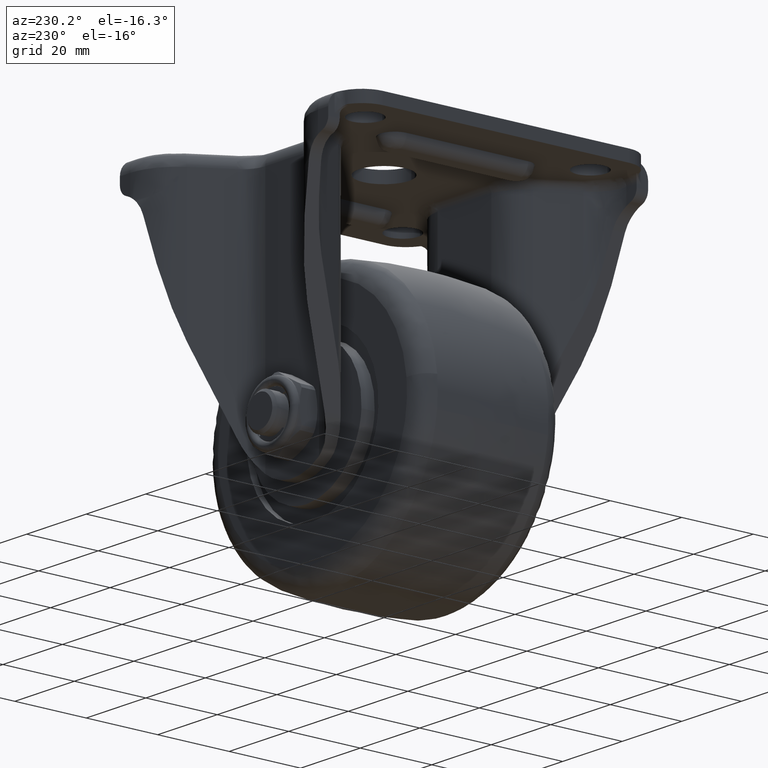
[diagram: clean part render]
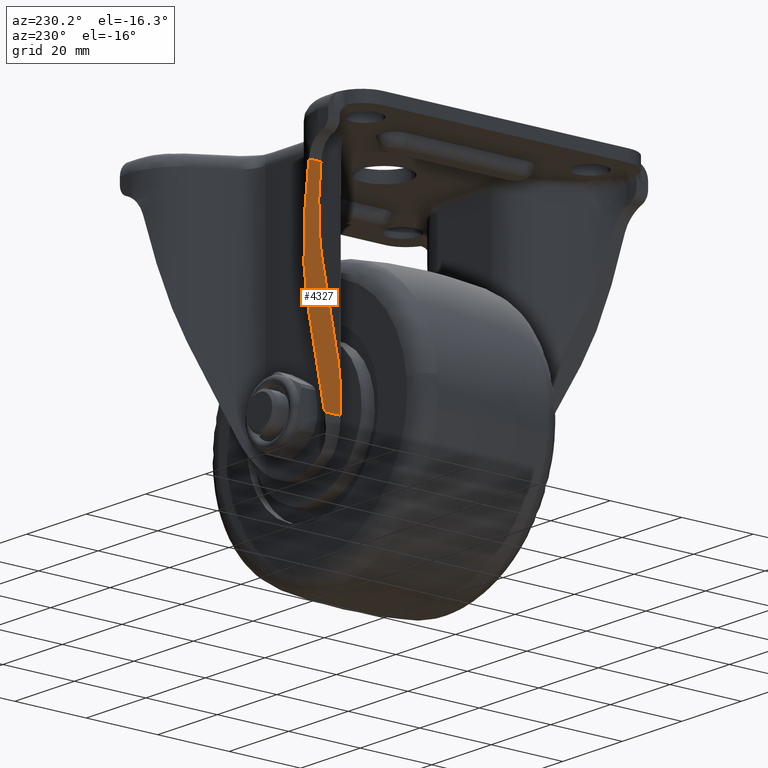
[diagram: same view with one face highlighted and labeled with its STEP entity id]
A machine part, auxiliary view. The second image highlights one B-rep face of the part: STEP entity #4327.
In plain terms, the highlighted face is a freeform B-spline surface patch.
Its self-contained STEP definition (entity closure, byte-faithful):
#3979=CARTESIAN_POINT('',(-27.843482274095500,44.224849989670602,-14.117380676074980));
#3980=VERTEX_POINT('',#3979);
#4006=CARTESIAN_POINT('',(-27.843482274095500,40.845788872264087,-14.117380676074980));
#4007=VERTEX_POINT('',#4006);
#4008=CARTESIAN_POINT('',(-27.843482274095500,44.224849989670602,-14.117380676074980));
#4009=CARTESIAN_POINT('',(-27.843482274095500,40.845788872264087,-14.117380676074980));
#4010=QUASI_UNIFORM_CURVE('',1,(#4008,#4009),.UNSPECIFIED.,.F.,.U.);
#4011=EDGE_CURVE('',#3980,#4007,#4010,.T.);
#4089=CARTESIAN_POINT('',(-14.506444900000080,28.746157723421149,-64.816132000000096));
#4090=VERTEX_POINT('',#4089);
#4211=CARTESIAN_POINT('',(-14.506444900000080,24.214443508646749,-64.816132000000096));
#4212=VERTEX_POINT('',#4211);
#4240=CARTESIAN_POINT('',(-14.506444900000080,28.746157723421149,-64.816132000000096));
#4241=CARTESIAN_POINT('',(-14.506444900000080,24.214443508646749,-64.816132000000096));
#4242=QUASI_UNIFORM_CURVE('',1,(#4240,#4241),.UNSPECIFIED.,.F.,.U.);
#4243=EDGE_CURVE('',#4090,#4212,#4242,.T.);
#4248=CARTESIAN_POINT('',(-13.840260241184360,23.214923439508130,-67.348534108889481));
#4249=CARTESIAN_POINT('',(-28.509663266295981,23.214923439508130,-11.584975664027590));
#4250=CARTESIAN_POINT('',(-13.840260241184360,45.224368806460390,-67.348534108889481));
#4251=CARTESIAN_POINT('',(-28.509663266295981,45.224368806460390,-11.584975664027590));
#4252=B_SPLINE_SURFACE_WITH_KNOTS('',1,1,((#4248,#4250),(#4249,#4251)),.UNSPECIFIED.,.F.,.F.,.U.,(2,2),(2,2),(0.0,57.660782474283877),(0.0,22.009445366952260),.UNSPECIFIED.);
#4253=CARTESIAN_POINT('',(-22.933087414140701,36.658630372762950,-32.783501120144301));
#4254=VERTEX_POINT('',#4253);
#4255=CARTESIAN_POINT('',(-22.933087414140701,36.658630372762950,-32.783501120144301));
#4256=CARTESIAN_POINT('',(-24.674594256633679,39.589172683273198,-26.163427557825393));
#4257=CARTESIAN_POINT('',(-27.843482274095500,40.845788872264087,-14.117380676074980));
#4265=(BOUNDED_CURVE()B_SPLINE_CURVE(2,(#4255,#4256,#4257),.UNSPECIFIED.,.F.,.U.)CURVE()GEOMETRIC_REPRESENTATION_ITEM()QUASI_UNIFORM_CURVE()RATIONAL_B_SPLINE_CURVE((1.0,0.946514351070067,1.0))REPRESENTATION_ITEM(''));
#4266=EDGE_CURVE('',#4254,#4007,#4265,.T.);
#4267=ORIENTED_EDGE('',*,*,#4266,.T.);
#4268=ORIENTED_EDGE('',*,*,#4011,.F.);
#4269=CARTESIAN_POINT('',(-20.182168750000351,38.293393999999900,-43.240710145096259));
#4270=VERTEX_POINT('',#4269);
#4271=CARTESIAN_POINT('',(-20.182168750000351,38.293393999999900,-43.240710145096259));
#4272=CARTESIAN_POINT('',(-22.842723164598013,42.770474387864191,-33.127013508202907));
#4273=CARTESIAN_POINT('',(-27.843482274095500,44.224849989670602,-14.117380676074980));
#4281=(BOUNDED_CURVE()B_SPLINE_CURVE(2,(#4271,#4272,#4273),.UNSPECIFIED.,.F.,.U.)CURVE()GEOMETRIC_REPRESENTATION_ITEM()QUASI_UNIFORM_CURVE()RATIONAL_B_SPLINE_CURVE((1.0,0.930217167168438,1.0))REPRESENTATION_ITEM(''));
#4282=EDGE_CURVE('',#4270,#3980,#4281,.T.);
#4283=ORIENTED_EDGE('',*,*,#4282,.F.);
#4284=CARTESIAN_POINT('',(-14.587802337281479,28.879389892393650,-64.506868866241717));
#4285=VERTEX_POINT('',#4284);
#4286=CARTESIAN_POINT('',(-20.182168750000351,38.293393999999900,-43.240710145096259));
#4287=CARTESIAN_POINT('',(-14.587802337281479,28.879389892393650,-64.506868866241717));
#4288=QUASI_UNIFORM_CURVE('',1,(#4286,#4287),.UNSPECIFIED.,.F.,.U.);
#4289=EDGE_CURVE('',#4270,#4285,#4288,.T.);
#4290=ORIENTED_EDGE('',*,*,#4289,.T.);
#4291=CARTESIAN_POINT('',(-14.587802337281479,28.879389892393650,-64.506868866241717));
#4292=CARTESIAN_POINT('',(-14.547923637056433,28.812285302354883,-64.658459321732366));
#4293=CARTESIAN_POINT('',(-14.506444900000078,28.746157723421149,-64.816132000000096));
#4301=(BOUNDED_CURVE()B_SPLINE_CURVE(2,(#4291,#4292,#4293),.UNSPECIFIED.,.F.,.U.)B_SPLINE_CURVE_WITH_KNOTS((3,3),(0.0,0.999990904546534),.UNSPECIFIED.)CURVE()GEOMETRIC_REPRESENTATION_ITEM()RATIONAL_B_SPLINE_CURVE((1.0,0.999927897453294,0.999999998688389))REPRESENTATION_ITEM(''));
#4302=EDGE_CURVE('',#4285,#4090,#4301,.T.);
#4303=ORIENTED_EDGE('',*,*,#4302,.T.);
#4304=ORIENTED_EDGE('',*,*,#4243,.T.);
#4305=CARTESIAN_POINT('',(-17.338721103407849,27.244623113038401,-54.049654364178402));
#4306=VERTEX_POINT('',#4305);
#4307=CARTESIAN_POINT('',(-17.338721103407838,27.244623113038401,-54.049654364178430));
#4308=CARTESIAN_POINT('',(-16.254178463708886,25.419594607924253,-58.172382246919724));
#4309=CARTESIAN_POINT('',(-14.506444900000080,24.214443508646749,-64.816132000000096));
#4317=(BOUNDED_CURVE()B_SPLINE_CURVE(2,(#4307,#4308,#4309),.UNSPECIFIED.,.F.,.U.)CURVE()GEOMETRIC_REPRESENTATION_ITEM()QUASI_UNIFORM_CURVE()RATIONAL_B_SPLINE_CURVE((1.0,0.976877187748000,1.0))REPRESENTATION_ITEM(''));
#4318=EDGE_CURVE('',#4306,#4212,#4317,.T.);
#4319=ORIENTED_EDGE('',*,*,#4318,.F.);
#4320=CARTESIAN_POINT('',(-17.338721103407849,27.244623113038401,-54.049654364178402));
#4321=CARTESIAN_POINT('',(-22.933087414140701,36.658630372762950,-32.783501120144301));
#4322=QUASI_UNIFORM_CURVE('',1,(#4320,#4321),.UNSPECIFIED.,.F.,.U.);
#4323=EDGE_CURVE('',#4306,#4254,#4322,.T.);
#4324=ORIENTED_EDGE('',*,*,#4323,.T.);
#4325=EDGE_LOOP('',(#4267,#4268,#4283,#4290,#4303,#4304,#4319,#4324));
#4326=FACE_OUTER_BOUND('',#4325,.T.);
#4327=ADVANCED_FACE('',(#4326),#4252,.T.);